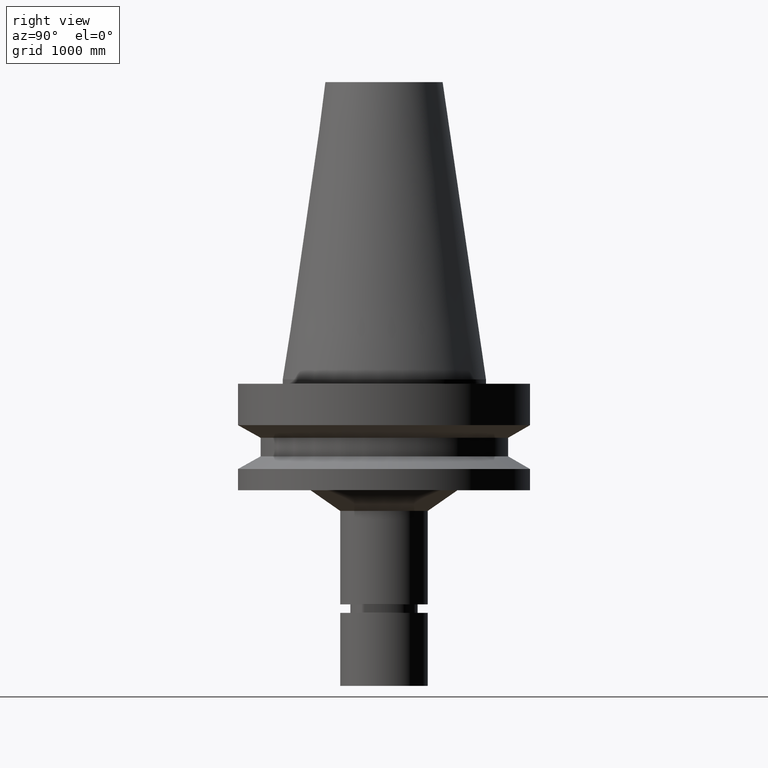
[diagram: clean part render]
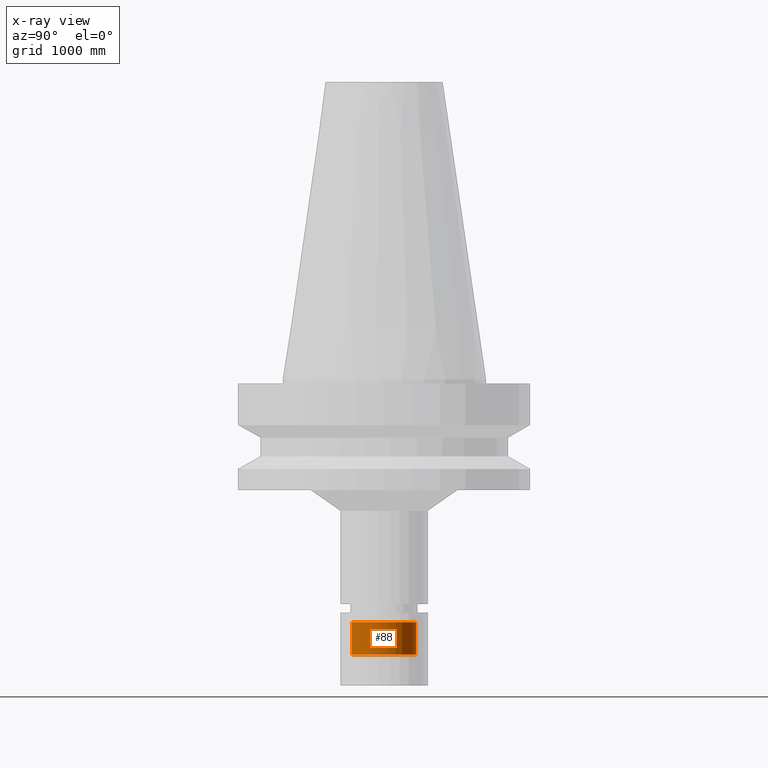
[diagram: x-ray — body ghosted, one internal face saturated and labeled with its STEP entity id]
A machine part, right view, then the same camera in x-ray: the body is ghosted and one INTERNAL B-rep face — a face not visible from any outside direction — is saturated and labeled: STEP entity #88.
In plain terms, the highlighted cylindrical surface (bore or boss wall) has radius 279.4 mm, axis along (-0, 0, 1).
Its self-contained STEP definition (entity closure, byte-faithful):
#88=ADVANCED_FACE('Unnamed[1]',(#221,#222),#223,.T.);
#116=EDGE_CURVE('Unnamed[1]',#264,#264,#265,.T.);
#158=EDGE_CURVE('Unnamed[1]',#330,#330,#331,.T.);
#221=FACE_BOUND('',#401,.T.);
#222=FACE_BOUND('',#402,.T.);
#223=CYLINDRICAL_SURFACE('',#403,11.0000000000001);
#264=VERTEX_POINT('',#455);
#265=CIRCLE('',#456,10.9999999999999);
#330=VERTEX_POINT('',#537);
#331=CIRCLE('',#538,11.0000000000002);
#401=EDGE_LOOP('',(#604));
#402=EDGE_LOOP('',(#605));
#403=AXIS2_PLACEMENT_3D('',#606,#607,#608);
#455=CARTESIAN_POINT('',(5.09453068445289E-015,10.9999999999999,-83.1999999999985));
#456=AXIS2_PLACEMENT_3D('',#649,#650,#651);
#537=CARTESIAN_POINT('',(5.77388782763889E-015,11.0000000000003,-94.2947441116719));
#538=AXIS2_PLACEMENT_3D('',#725,#726,#727);
#604=ORIENTED_EDGE('',*,*,#116,.F.);
#605=ORIENTED_EDGE('',*,*,#158,.T.);
#606=CARTESIAN_POINT('',(5.43420925604589E-015,1.29836832408783E-014,-88.7473720558352));
#607=DIRECTION('',(-6.12323399573677E-017,1.4068406993902E-019,1.0));
#608=DIRECTION('',(-4.81853831597193E-033,1.0,-1.4068406993902E-019));
#649=CARTESIAN_POINT('',(5.0945306844529E-015,1.29844636677565E-014,-83.1999999999985));
#650=DIRECTION('',(-6.12323399573676E-017,1.40684069939022E-019,1.0));
#651=DIRECTION('',(-4.81853831597193E-033,1.0,-1.40684069939022E-019));
#725=CARTESIAN_POINT('',(5.77388782763889E-015,1.2982902814E-014,-94.294744111672));
#726=DIRECTION('',(-6.12323399573677E-017,1.40684069939018E-019,1.0));
#727=DIRECTION('',(-4.81853831597193E-033,1.0,-1.40684069939018E-019));